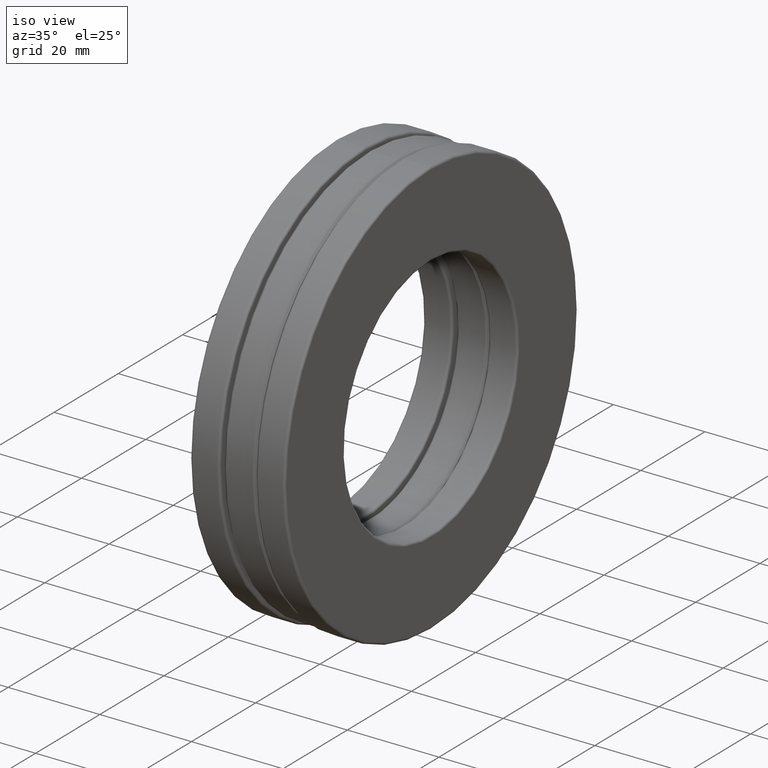
[diagram: clean part render]
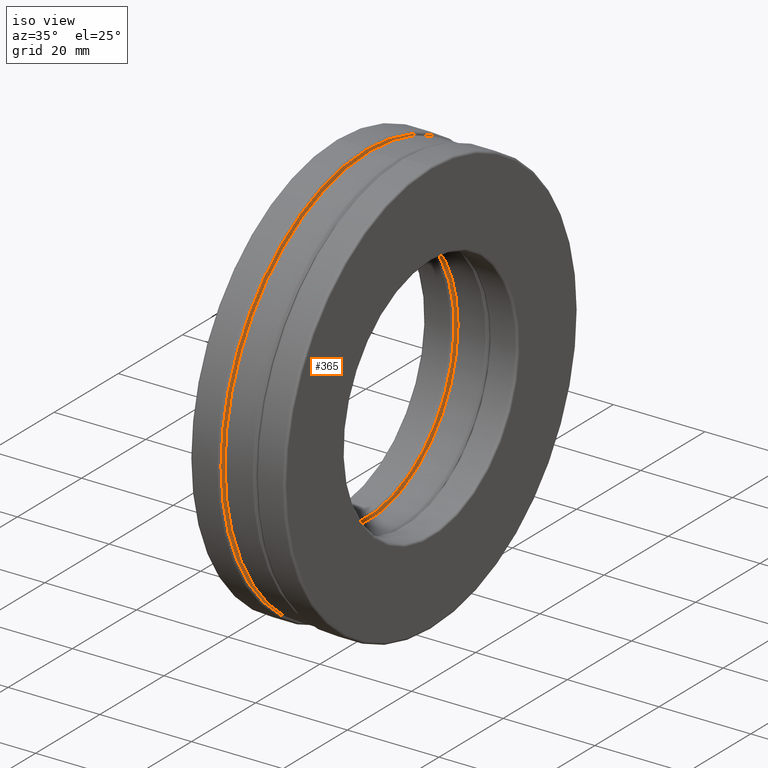
[diagram: same view with one face highlighted and labeled with its STEP entity id]
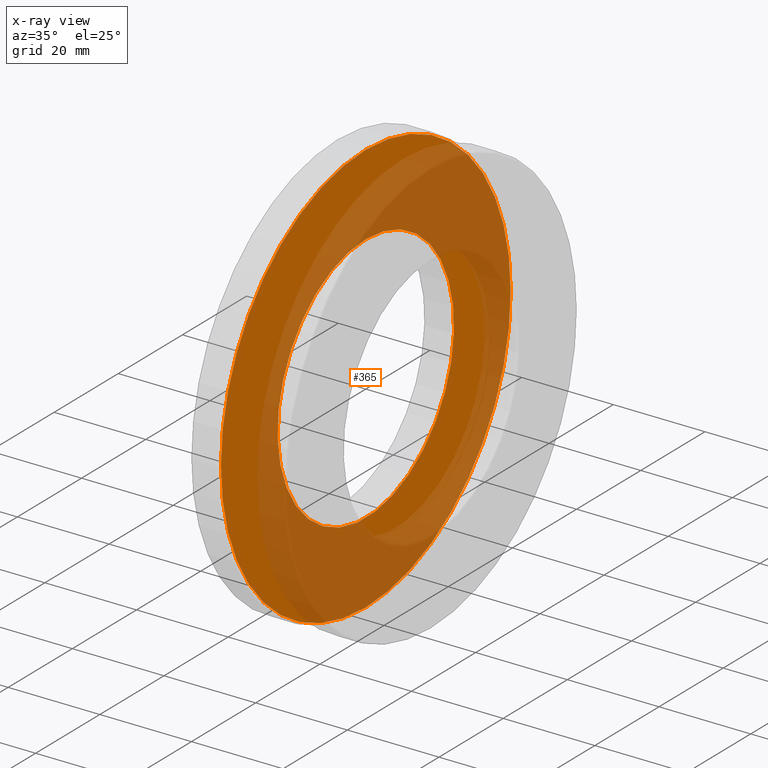
[diagram: x-ray of the same camera — body ghosted, the highlighted face saturated]
A machine part, iso view. The second image highlights one B-rep face of the part: STEP entity #365.
The next image is the same camera in x-ray: the body ghosted, the highlighted face saturated — about 58% of this face is hidden behind the body in this view.
In plain terms, the highlighted planar face has unit normal (1, 0, 0).
Its self-contained STEP definition (entity closure, byte-faithful):
#27 = EDGE_CURVE ( 'NONE', #1067, #1067, #154, .T. ) ;
#33 = ORIENTED_EDGE ( 'NONE', *, *, #919, .T. ) ;
#77 = CIRCLE ( 'NONE', #1457, 1.082500000000000000 ) ;
#154 = CIRCLE ( 'NONE', #1321, 1.776875000000000400 ) ;
#155 = CARTESIAN_POINT ( 'NONE',  ( -0.1559999999999999400, 0.0000000000000000000, 1.776875000000000400 ) ) ;
#174 = DIRECTION ( 'NONE',  ( -1.000000000000000000, -0.0000000000000000000, -0.0000000000000000000 ) ) ;
#269 = CARTESIAN_POINT ( 'NONE',  ( -0.1559999999999999400, 0.0000000000000000000, 0.0000000000000000000 ) ) ;
#314 = PLANE ( 'NONE',  #1436 ) ;
#328 = VERTEX_POINT ( 'NONE', #513 ) ;
#333 = EDGE_LOOP ( 'NONE', ( #1404 ) ) ;
#365 = ADVANCED_FACE ( 'NONE', ( #890, #1403 ), #314, .T. ) ;
#513 = CARTESIAN_POINT ( 'NONE',  ( -0.1559999999999999200, 0.0000000000000000000, 1.082500000000000000 ) ) ;
#519 = DIRECTION ( 'NONE',  ( 0.0000000000000000000, 0.0000000000000000000, 1.000000000000000000 ) ) ;
#538 = DIRECTION ( 'NONE',  ( 0.0000000000000000000, 0.0000000000000000000, 1.000000000000000000 ) ) ;
#658 = CARTESIAN_POINT ( 'NONE',  ( -0.1559999999999999200, 0.0000000000000000000, 0.0000000000000000000 ) ) ;
#674 = DIRECTION ( 'NONE',  ( 1.000000000000000000, 0.0000000000000000000, 0.0000000000000000000 ) ) ;
#785 = DIRECTION ( 'NONE',  ( 0.0000000000000000000, 0.0000000000000000000, -1.000000000000000000 ) ) ;
#890 = FACE_BOUND ( 'NONE', #1014, .T. ) ;
#919 = EDGE_CURVE ( 'NONE', #328, #328, #77, .T. ) ;
#1005 = DIRECTION ( 'NONE',  ( -1.000000000000000000, -0.0000000000000000000, -0.0000000000000000000 ) ) ;
#1014 = EDGE_LOOP ( 'NONE', ( #33 ) ) ;
#1067 = VERTEX_POINT ( 'NONE', #155 ) ;
#1321 = AXIS2_PLACEMENT_3D ( 'NONE', #269, #174, #519 ) ;
#1403 = FACE_OUTER_BOUND ( 'NONE', #333, .T. ) ;
#1404 = ORIENTED_EDGE ( 'NONE', *, *, #27, .F. ) ;
#1436 = AXIS2_PLACEMENT_3D ( 'NONE', #1455, #674, #785 ) ;
#1455 = CARTESIAN_POINT ( 'NONE',  ( -0.1559999999999999200, -7.671796345843823700E-018, 0.0000000000000000000 ) ) ;
#1457 = AXIS2_PLACEMENT_3D ( 'NONE', #658, #1005, #538 ) ;